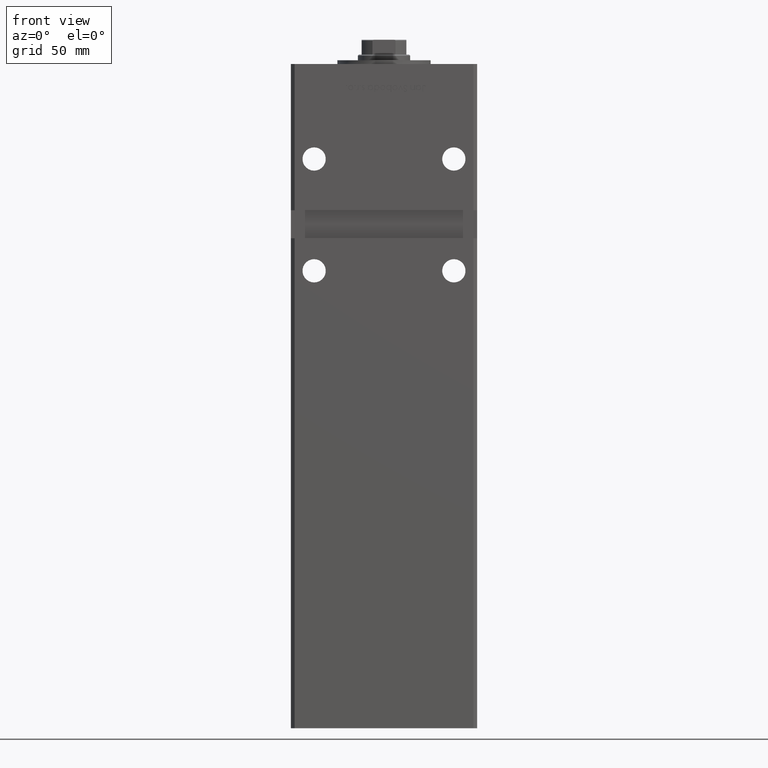
[diagram: clean part render]
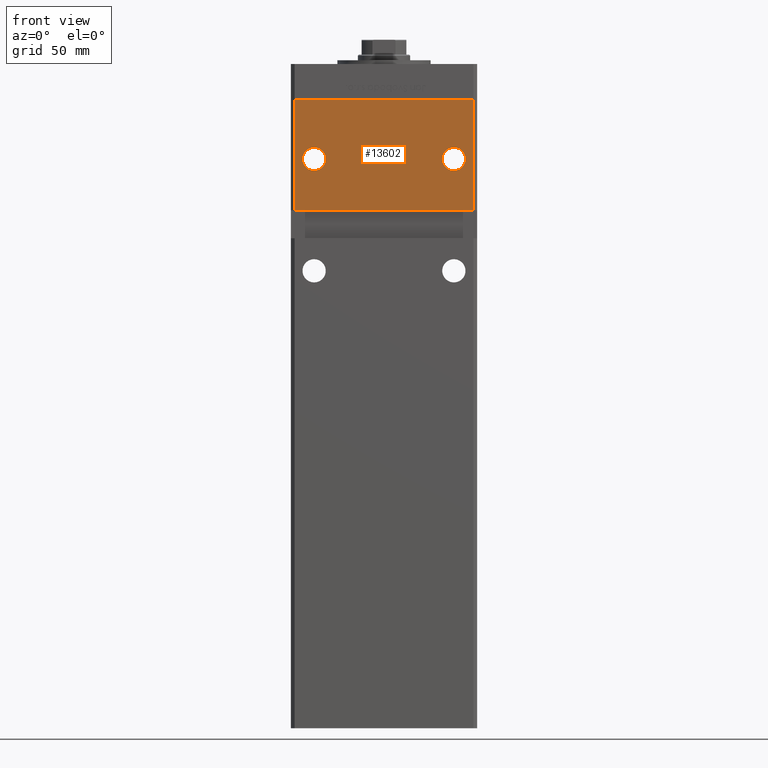
[diagram: same view with one face highlighted and labeled with its STEP entity id]
A machine part, front view. The second image highlights one B-rep face of the part: STEP entity #13602.
In plain terms, the highlighted planar face has unit normal (0, 1, 0).
Its self-contained STEP definition (entity closure, byte-faithful):
#831 = CARTESIAN_POINT ( 'NONE',  ( 47.99999999999998579, -43.50000000000000000, 318.5000000000000000 ) ) ;
#871 = EDGE_CURVE ( 'NONE', #29109, #42673, #52464, .T. ) ;
#1564 = DIRECTION ( 'NONE',  ( 0.000000000000000000, 0.000000000000000000, 1.000000000000000000 ) ) ;
#2623 = CARTESIAN_POINT ( 'NONE',  ( -47.99999999999998579, -43.50000000000000000, 318.5000000000000000 ) ) ;
#4140 = FACE_BOUND ( 'NONE', #30032, .T. ) ;
#4685 = FACE_BOUND ( 'NONE', #14702, .T. ) ;
#5099 = DIRECTION ( 'NONE',  ( -0.000000000000000000, -0.000000000000000000, -1.000000000000000000 ) ) ;
#6829 = AXIS2_PLACEMENT_3D ( 'NONE', #13316, #12520, #9022 ) ;
#7635 = DIRECTION ( 'NONE',  ( 0.000000000000000000, 1.000000000000000000, 0.000000000000000000 ) ) ;
#7754 = VERTEX_POINT ( 'NONE', #9878 ) ;
#7950 = ORIENTED_EDGE ( 'NONE', *, *, #32579, .F. ) ;
#9022 = DIRECTION ( 'NONE',  ( 0.000000000000000000, 0.000000000000000000, 1.000000000000000000 ) ) ;
#9402 = CARTESIAN_POINT ( 'NONE',  ( -47.99999999999998579, -43.50000000000000000, 318.5000000000000000 ) ) ;
#9878 = CARTESIAN_POINT ( 'NONE',  ( 37.50000000000000000, -43.50000000000000000, 280.2500000000000000 ) ) ;
#10223 = VECTOR ( 'NONE', #5099, 1000.000000000000000 ) ;
#10692 = CIRCLE ( 'NONE', #17577, 6.249999999999977796 ) ;
#11353 = CARTESIAN_POINT ( 'NONE',  ( -47.99999999999998579, -43.50000000000000000, 318.5000000000000000 ) ) ;
#11543 = VERTEX_POINT ( 'NONE', #29284 ) ;
#12320 = EDGE_LOOP ( 'NONE', ( #42432, #7950, #43805, #52316 ) ) ;
#12520 = DIRECTION ( 'NONE',  ( 0.000000000000000000, 1.000000000000000000, 0.000000000000000000 ) ) ;
#13316 = CARTESIAN_POINT ( 'NONE',  ( -37.50000000000000000, -43.50000000000000000, 286.5000000000000000 ) ) ;
#13602 = ADVANCED_FACE ( 'NONE', ( #4140, #4685, #25147 ), #49878, .F. ) ;
#14530 = CARTESIAN_POINT ( 'NONE',  ( 47.99999999999998579, -43.50000000000000000, 259.0000000000000000 ) ) ;
#14702 = EDGE_LOOP ( 'NONE', ( #44028, #50650 ) ) ;
#16846 = VECTOR ( 'NONE', #46152, 1000.000000000000000 ) ;
#16962 = EDGE_CURVE ( 'NONE', #40693, #11543, #48200, .T. ) ;
#17529 = LINE ( 'NONE', #831, #39401 ) ;
#17577 = AXIS2_PLACEMENT_3D ( 'NONE', #34148, #51344, #1564 ) ;
#18027 = CIRCLE ( 'NONE', #6829, 6.249999999999977796 ) ;
#19725 = CARTESIAN_POINT ( 'NONE',  ( -37.50000000000000000, -43.50000000000000000, 280.2500000000000000 ) ) ;
#19954 = DIRECTION ( 'NONE',  ( 1.000000000000000000, 0.000000000000000000, 0.000000000000000000 ) ) ;
#20570 = DIRECTION ( 'NONE',  ( 0.000000000000000000, -0.000000000000000000, 1.000000000000000000 ) ) ;
#21039 = DIRECTION ( 'NONE',  ( -0.000000000000000000, -0.000000000000000000, -1.000000000000000000 ) ) ;
#21368 = CIRCLE ( 'NONE', #35114, 6.249999999999977796 ) ;
#24662 = LINE ( 'NONE', #24929, #16846 ) ;
#24929 = CARTESIAN_POINT ( 'NONE',  ( -49.99999999999998579, -43.50000000000000000, 259.0000000000000000 ) ) ;
#25147 = FACE_OUTER_BOUND ( 'NONE', #12320, .T. ) ;
#26024 = DIRECTION ( 'NONE',  ( 0.000000000000000000, 1.000000000000000000, 0.000000000000000000 ) ) ;
#26678 = AXIS2_PLACEMENT_3D ( 'NONE', #46123, #45053, #29201 ) ;
#28161 = VERTEX_POINT ( 'NONE', #33742 ) ;
#28901 = EDGE_CURVE ( 'NONE', #7754, #49276, #10692, .T. ) ;
#29109 = VERTEX_POINT ( 'NONE', #38602 ) ;
#29201 = DIRECTION ( 'NONE',  ( 0.000000000000000000, 0.000000000000000000, 1.000000000000000000 ) ) ;
#29284 = CARTESIAN_POINT ( 'NONE',  ( 47.99999999999998579, -43.50000000000000000, 318.5000000000000000 ) ) ;
#30032 = EDGE_LOOP ( 'NONE', ( #40124, #51448 ) ) ;
#30071 = CARTESIAN_POINT ( 'NONE',  ( 37.50000000000000000, -43.50000000000000000, 286.5000000000000000 ) ) ;
#31831 = CARTESIAN_POINT ( 'NONE',  ( 37.50000000000000000, -43.50000000000000000, 292.7499999999999432 ) ) ;
#31983 = VECTOR ( 'NONE', #19954, 1000.000000000000000 ) ;
#32579 = EDGE_CURVE ( 'NONE', #46265, #28161, #24662, .T. ) ;
#33742 = CARTESIAN_POINT ( 'NONE',  ( -47.99999999999998579, -43.50000000000000000, 259.0000000000000000 ) ) ;
#34148 = CARTESIAN_POINT ( 'NONE',  ( 37.50000000000000000, -43.50000000000000000, 286.5000000000000000 ) ) ;
#35114 = AXIS2_PLACEMENT_3D ( 'NONE', #30071, #26024, #42417 ) ;
#38602 = CARTESIAN_POINT ( 'NONE',  ( -37.50000000000000000, -43.50000000000000000, 292.7499999999999432 ) ) ;
#38805 = AXIS2_PLACEMENT_3D ( 'NONE', #49614, #7635, #20570 ) ;
#39401 = VECTOR ( 'NONE', #21039, 1000.000000000000000 ) ;
#39540 = EDGE_CURVE ( 'NONE', #11543, #46265, #17529, .T. ) ;
#40124 = ORIENTED_EDGE ( 'NONE', *, *, #48067, .T. ) ;
#40693 = VERTEX_POINT ( 'NONE', #2623 ) ;
#42417 = DIRECTION ( 'NONE',  ( 0.000000000000000000, 0.000000000000000000, 1.000000000000000000 ) ) ;
#42432 = ORIENTED_EDGE ( 'NONE', *, *, #49659, .T. ) ;
#42673 = VERTEX_POINT ( 'NONE', #19725 ) ;
#43805 = ORIENTED_EDGE ( 'NONE', *, *, #39540, .F. ) ;
#44028 = ORIENTED_EDGE ( 'NONE', *, *, #871, .T. ) ;
#45053 = DIRECTION ( 'NONE',  ( 0.000000000000000000, 1.000000000000000000, 0.000000000000000000 ) ) ;
#46123 = CARTESIAN_POINT ( 'NONE',  ( -37.50000000000000000, -43.50000000000000000, 286.5000000000000000 ) ) ;
#46152 = DIRECTION ( 'NONE',  ( -1.000000000000000000, -0.000000000000000000, -0.000000000000000000 ) ) ;
#46265 = VERTEX_POINT ( 'NONE', #14530 ) ;
#48067 = EDGE_CURVE ( 'NONE', #49276, #7754, #21368, .T. ) ;
#48200 = LINE ( 'NONE', #11353, #31983 ) ;
#49276 = VERTEX_POINT ( 'NONE', #31831 ) ;
#49614 = CARTESIAN_POINT ( 'NONE',  ( -47.99999999999998579, -43.50000000000000000, 318.5000000000000000 ) ) ;
#49659 = EDGE_CURVE ( 'NONE', #40693, #28161, #53271, .T. ) ;
#49878 = PLANE ( 'NONE',  #38805 ) ;
#50650 = ORIENTED_EDGE ( 'NONE', *, *, #50908, .T. ) ;
#50908 = EDGE_CURVE ( 'NONE', #42673, #29109, #18027, .T. ) ;
#51344 = DIRECTION ( 'NONE',  ( 0.000000000000000000, 1.000000000000000000, 0.000000000000000000 ) ) ;
#51448 = ORIENTED_EDGE ( 'NONE', *, *, #28901, .T. ) ;
#52316 = ORIENTED_EDGE ( 'NONE', *, *, #16962, .F. ) ;
#52464 = CIRCLE ( 'NONE', #26678, 6.249999999999977796 ) ;
#53271 = LINE ( 'NONE', #9402, #10223 ) ;